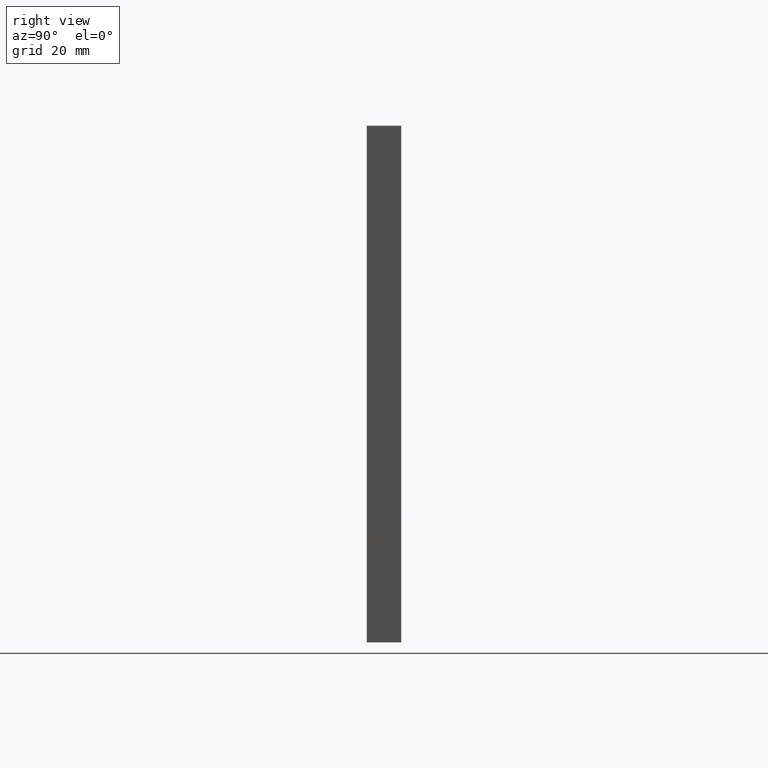
[diagram: clean part render]
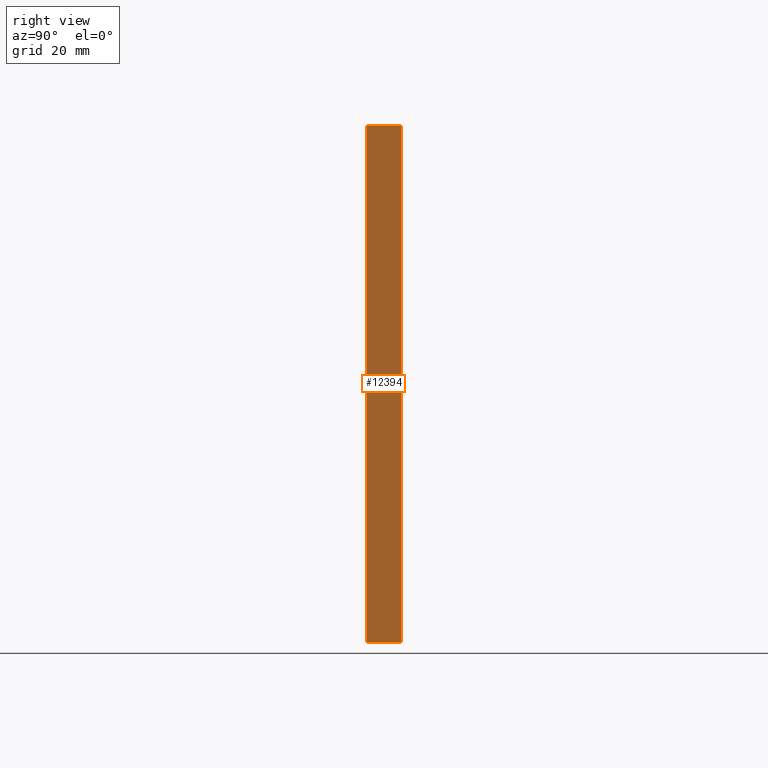
[diagram: same view with one face highlighted and labeled with its STEP entity id]
A machine part, right view. The second image highlights one B-rep face of the part: STEP entity #12394.
In plain terms, the highlighted planar face has unit normal (-1, 0, 0).
Its self-contained STEP definition (entity closure, byte-faithful):
#339 = DIRECTION ( 'NONE',  ( -1.156482317317871478E-16, -0.000000000000000000, -1.000000000000000000 ) ) ;
#845 = DIRECTION ( 'NONE',  ( -1.156482317317871478E-16, -0.000000000000000000, -1.000000000000000000 ) ) ;
#893 = CARTESIAN_POINT ( 'NONE',  ( 59.99999999999998579, 0.000000000000000000, -59.99999999999998579 ) ) ;
#1860 = CARTESIAN_POINT ( 'NONE',  ( 59.99999999999998579, 8.000000000000000000, -59.99999999999998579 ) ) ;
#2894 = VERTEX_POINT ( 'NONE', #7458 ) ;
#2976 = VECTOR ( 'NONE', #845, 1000.000000000000000 ) ;
#3757 = EDGE_CURVE ( 'NONE', #2894, #9129, #5061, .T. ) ;
#4153 = CARTESIAN_POINT ( 'NONE',  ( 59.99999999999998579, 0.000000000000000000, -59.99999999999998579 ) ) ;
#4398 = VECTOR ( 'NONE', #339, 1000.000000000000000 ) ;
#4998 = CARTESIAN_POINT ( 'NONE',  ( 60.00000000000000000, 8.000000000000000000, 60.00000000000001421 ) ) ;
#5061 = LINE ( 'NONE', #4998, #5955 ) ;
#5763 = EDGE_CURVE ( 'NONE', #2894, #8525, #6543, .T. ) ;
#5955 = VECTOR ( 'NONE', #7878, 1000.000000000000000 ) ;
#6055 = ORIENTED_EDGE ( 'NONE', *, *, #10023, .T. ) ;
#6057 = LINE ( 'NONE', #6482, #7267 ) ;
#6445 = FACE_OUTER_BOUND ( 'NONE', #9438, .T. ) ;
#6482 = CARTESIAN_POINT ( 'NONE',  ( 59.99999999999998579, 8.000000000000000000, -59.99999999999998579 ) ) ;
#6543 = LINE ( 'NONE', #1860, #2976 ) ;
#7021 = AXIS2_PLACEMENT_3D ( 'NONE', #10952, #9118, #11966 ) ;
#7267 = VECTOR ( 'NONE', #11204, 1000.000000000000000 ) ;
#7448 = EDGE_CURVE ( 'NONE', #8525, #7884, #6057, .T. ) ;
#7458 = CARTESIAN_POINT ( 'NONE',  ( 60.00000000000000000, 8.000000000000000000, 60.00000000000001421 ) ) ;
#7836 = LINE ( 'NONE', #4153, #4398 ) ;
#7878 = DIRECTION ( 'NONE',  ( -0.000000000000000000, -1.000000000000000000, -0.000000000000000000 ) ) ;
#7884 = VERTEX_POINT ( 'NONE', #893 ) ;
#8525 = VERTEX_POINT ( 'NONE', #9165 ) ;
#9118 = DIRECTION ( 'NONE',  ( -1.000000000000000000, 0.000000000000000000, 1.156482317317871725E-16 ) ) ;
#9129 = VERTEX_POINT ( 'NONE', #11031 ) ;
#9165 = CARTESIAN_POINT ( 'NONE',  ( 59.99999999999998579, 8.000000000000000000, -59.99999999999998579 ) ) ;
#9438 = EDGE_LOOP ( 'NONE', ( #6055, #11608, #11100, #11981 ) ) ;
#9983 = PLANE ( 'NONE',  #7021 ) ;
#10023 = EDGE_CURVE ( 'NONE', #9129, #7884, #7836, .T. ) ;
#10952 = CARTESIAN_POINT ( 'NONE',  ( 59.99999999999998579, 8.000000000000000000, -59.99999999999998579 ) ) ;
#11031 = CARTESIAN_POINT ( 'NONE',  ( 60.00000000000000000, 0.000000000000000000, 60.00000000000001421 ) ) ;
#11100 = ORIENTED_EDGE ( 'NONE', *, *, #5763, .F. ) ;
#11204 = DIRECTION ( 'NONE',  ( -0.000000000000000000, -1.000000000000000000, -0.000000000000000000 ) ) ;
#11608 = ORIENTED_EDGE ( 'NONE', *, *, #7448, .F. ) ;
#11966 = DIRECTION ( 'NONE',  ( 1.156482317317871725E-16, 0.000000000000000000, 1.000000000000000000 ) ) ;
#11981 = ORIENTED_EDGE ( 'NONE', *, *, #3757, .T. ) ;
#12394 = ADVANCED_FACE ( 'NONE', ( #6445 ), #9983, .F. ) ;